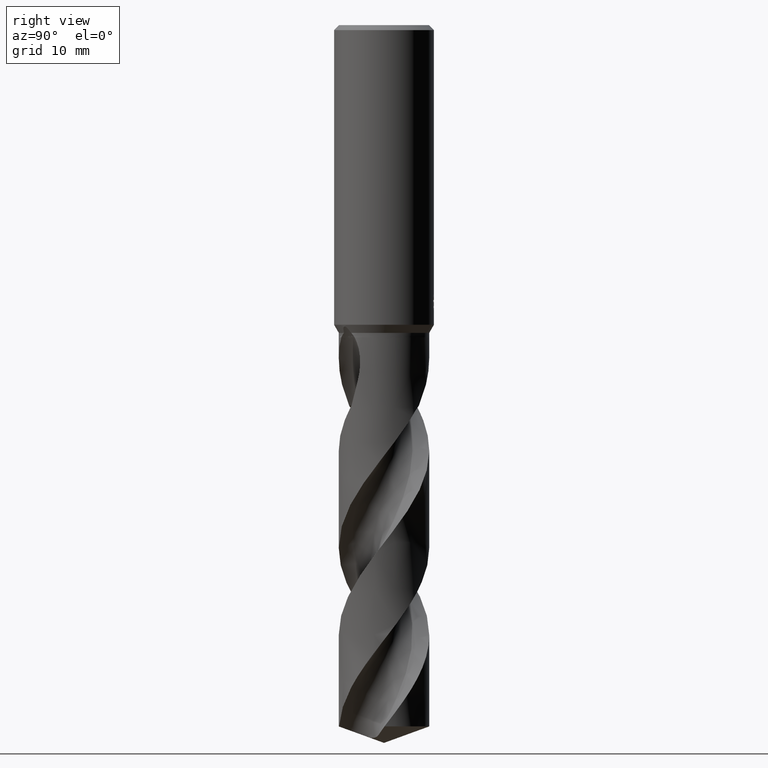
[diagram: clean part render]
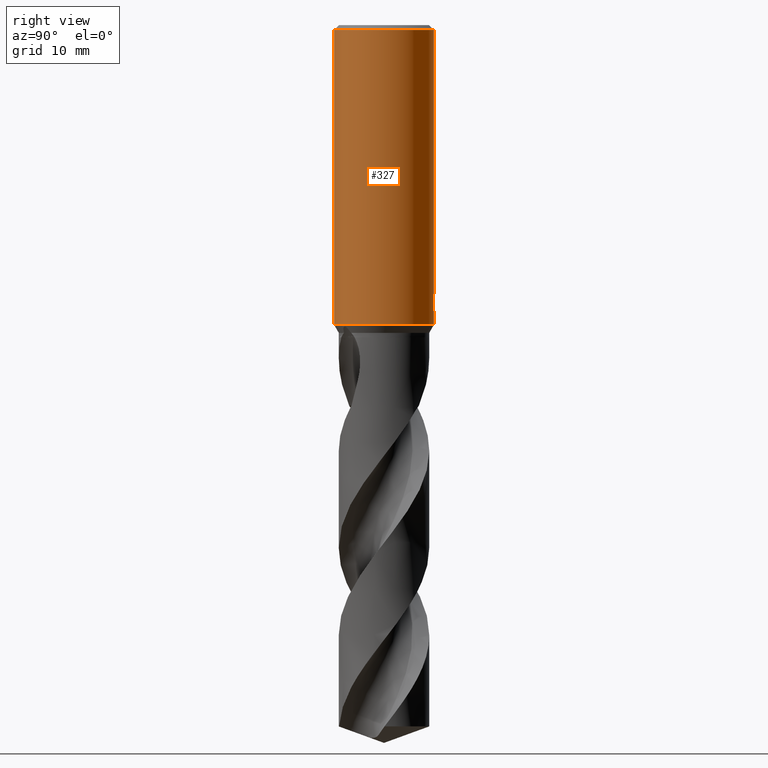
[diagram: same view with one face highlighted and labeled with its STEP entity id]
A machine part, right view. The second image highlights one B-rep face of the part: STEP entity #327.
In plain terms, the highlighted cylindrical surface (partial cylindrical patch) has radius 8 mm, axis along (-0, -0, 1).
Its self-contained STEP definition (entity closure, byte-faithful):
#299=EDGE_CURVE('',#537,#451,#830,.T.);
#327=ADVANCED_FACE('',(#864),#865,.T.);
#335=EDGE_CURVE('',#557,#739,#873,.T.);
#347=VERTEX_POINT('',#885);
#369=EDGE_CURVE('',#557,#451,#909,.T.);
#371=EDGE_CURVE('',#687,#437,#911,.T.);
#397=EDGE_CURVE('',#433,#537,#941,.T.);
#433=VERTEX_POINT('',#982);
#437=VERTEX_POINT('',#986);
#449=EDGE_CURVE('',#437,#679,#999,.T.);
#451=VERTEX_POINT('',#1001);
#465=EDGE_CURVE('',#509,#687,#1015,.T.);
#489=EDGE_CURVE('',#679,#739,#1039,.T.);
#509=VERTEX_POINT('',#1060);
#513=VERTEX_POINT('',#1064);
#537=VERTEX_POINT('',#1088);
#557=VERTEX_POINT('',#1108);
#571=EDGE_CURVE('',#513,#509,#1124,.T.);
#613=EDGE_CURVE('',#347,#433,#1169,.T.);
#631=EDGE_CURVE('',#697,#513,#1188,.T.);
#659=EDGE_CURVE('',#347,#697,#1220,.T.);
#679=VERTEX_POINT('',#1244);
#687=VERTEX_POINT('',#1253);
#697=VERTEX_POINT('',#1264);
#739=VERTEX_POINT('',#1311);
#830=LINE('',#1404,#1405);
#864=FACE_OUTER_BOUND('',#1767,.T.);
#865=CYLINDRICAL_SURFACE('',#1768,8.0);
#873=LINE('',#1779,#1780);
#885=CARTESIAN_POINT('',(-7.24729156774638E-017,8.0,-46.0310253601033));
#909=CIRCLE('',#1842,8.0);
#911=LINE('',#1845,#1846);
#941=CIRCLE('',#1923,8.0);
#982=CARTESIAN_POINT('',(0.0,8.0,-48.0));
#986=CARTESIAN_POINT('',(1.33721006514658,7.88745011024924,-43.5150484364821));
#999=B_SPLINE_CURVE_WITH_KNOTS('',3,(#2028,#2029,#2030,#2031,#2032,#2033,#2034,#2035,#2036,#2037),.UNSPECIFIED.,.F.,.F.,(4,2,2,2,4),(0.615348112106937,0.923022168160405,1.23069622421387,1.53827686765788,1.84585751110189),.UNSPECIFIED.);
#1001=CARTESIAN_POINT('',(9.79685083057902E-016,-8.0,-0.799999999999997));
#1015=B_SPLINE_CURVE_WITH_KNOTS('',3,(#2098,#2099,#2100,#2101,#2102,#2103,#2104,#2105,#2106,#2107),.UNSPECIFIED.,.F.,.F.,(4,2,2,2,4),(7.9997820093283,8.30736264228193,8.61494327523556,8.92261732067862,9.23029136612168),.UNSPECIFIED.);
#1039=B_SPLINE_CURVE_WITH_KNOTS('',3,(#2317,#2318,#2319,#2320,#2321,#2322,#2323,#2324,#2325,#2326,#2327,#2328,#2329,#2330,#2331,#2332,#2333,#2334,#2335,#2336,#2337,#2338,#2339,#2340,#2341,#2342,#2343),.UNSPECIFIED.,.F.,.F.,(4,2,3,2,2,2,2,2,2,2,2,2,4),(-0.5419285326464,-0.2709642663232,0.0,0.2709642663232,0.5419285326464,0.813116082096196,1.08430363154599,1.35512009221967,1.62593655289334,1.89686258809883,2.16778862330431,2.43871465850979,2.70964069371527),.UNSPECIFIED.);
#1060=CARTESIAN_POINT('',(0.873560781758956,7.95216269706378,-45.7587351791531));
#1064=CARTESIAN_POINT('',(0.873560781758957,7.95216269706378,-44.3198931596091));
#1088=CARTESIAN_POINT('',(9.79685083057902E-016,-8.0,-48.0));
#1108=CARTESIAN_POINT('',(0.0,8.0,-0.799999999999997));
#1124=LINE('',#3431,#3432);
#1169=LINE('',#4377,#4378);
#1188=ELLIPSE('',#4426,24.3839565869582,8.0);
#1220=B_SPLINE_CURVE_WITH_KNOTS('',3,(#4616,#4617,#4618,#4619,#4620,#4621,#4622,#4623,#4624,#4625,#4626,#4627,#4628,#4629,#4630,#4631),.UNSPECIFIED.,.F.,.F.,(4,2,2,2,2,2,2,4),(5.84590460773513,6.15359942935952,6.46135491269572,6.76911039603191,7.0768658793681,7.3846213627043,7.69220202210762,7.99978268151095),.UNSPECIFIED.);
#1244=CARTESIAN_POINT('',(0.799431726384364,7.95995659001041,-43.000000276873));
#1253=CARTESIAN_POINT('',(1.33721006514658,7.88745011024924,-45.2901657003257));
#1264=CARTESIAN_POINT('',(0.29010312703583,7.99473828062458,-45.9998328990228));
#1311=CARTESIAN_POINT('',(-9.11185746623598E-016,8.0,-44.0232688117743));
#1404=CARTESIAN_POINT('',(9.79685083057902E-016,-8.0,-24.4));
#1405=VECTOR('',#5278,1.0);
#1767=EDGE_LOOP('',(#5332,#5333,#5334,#5335,#5336,#5337,#5338,#5339,#5340,#5341,#5342,#5343));
#1768=AXIS2_PLACEMENT_3D('',#5344,#5345,#5346);
#1779=CARTESIAN_POINT('',(-9.79685083057902E-016,8.0,-24.4));
#1780=VECTOR('',#5348,1.0);
#1842=AXIS2_PLACEMENT_3D('',#5385,#5386,#5387);
#1845=CARTESIAN_POINT('',(1.33721006514658,7.88745011024924,-44.4026070684039));
#1846=VECTOR('',#5388,1.0);
#1923=AXIS2_PLACEMENT_3D('',#5452,#5453,#5454);
#2028=CARTESIAN_POINT('',(1.47599103529286,7.86266179253153,-43.7785325491198));
#2029=CARTESIAN_POINT('',(1.43438985944284,7.87047122759364,-43.6782513647829));
#2030=CARTESIAN_POINT('',(1.38262799115151,7.87984840929324,-43.5821733907361));
#2031=CARTESIAN_POINT('',(1.26311675841946,7.89988652891524,-43.4045654679751));
#2032=CARTESIAN_POINT('',(1.19535909291818,7.9105264552896,-43.323038735155));
#2033=CARTESIAN_POINT('',(1.05105571182799,7.93098927160683,-43.1787555986019));
#2034=CARTESIAN_POINT('',(0.96953892166584,7.94153484648562,-43.1110208119877));
#2035=CARTESIAN_POINT('',(0.791947255495983,7.96120600054034,-42.9915456660162));
#2036=CARTESIAN_POINT('',(0.695875588998913,7.97031164946692,-42.9397972554843));
#2037=CARTESIAN_POINT('',(0.595603047157031,7.97779775440674,-42.8982081378705));
#2098=CARTESIAN_POINT('',(0.595603069362038,7.97779775274897,-45.9070059828647));
#2099=CARTESIAN_POINT('',(0.695875607770284,7.97031164778485,-45.8654168666682));
#2100=CARTESIAN_POINT('',(0.791947270975792,7.9612059989663,-45.8136684579007));
#2101=CARTESIAN_POINT('',(0.969538931061313,7.94153484530432,-45.6941933160018));
#2102=CARTESIAN_POINT('',(1.05105571843074,7.93098927070892,-45.626458531696));
#2103=CARTESIAN_POINT('',(1.19535909455105,7.91052645501965,-45.4821754000808));
#2104=CARTESIAN_POINT('',(1.26311675770878,7.89988652901278,-45.400648670066));
#2105=CARTESIAN_POINT('',(1.38262798630879,7.87984841012683,-45.2230407534163));
#2106=CARTESIAN_POINT('',(1.43438985281126,7.87047122879432,-45.1269627826753));
#2107=CARTESIAN_POINT('',(1.47599102722323,7.86266179404637,-45.0266816017901));
#2317=CARTESIAN_POINT('',(0.664954599443552,7.97231681386778,-42.8134280485152));
#2318=CARTESIAN_POINT('',(0.728697309144575,7.96700016514617,-42.8771976298052));
#2319=CARTESIAN_POINT('',(0.783984970005959,7.96157817669746,-42.9579676288293));
#2320=CARTESIAN_POINT('',(0.857338729083105,7.95401344016708,-43.1350264032587));
#2321=CARTESIAN_POINT('',(0.875400981188567,7.9519603320272,-43.2313205904791));
#2322=CARTESIAN_POINT('',(0.875400981188567,7.9519603320272,-43.3216420125868));
#2323=CARTESIAN_POINT('',(0.875400981188567,7.9519603320272,-43.4119634346945));
#2324=CARTESIAN_POINT('',(0.857338729083105,7.95401344016708,-43.5082576219149));
#2325=CARTESIAN_POINT('',(0.783984970005959,7.96157817669746,-43.6853163963443));
#2326=CARTESIAN_POINT('',(0.728697309144575,7.96700016514617,-43.7660863953684));
#2327=CARTESIAN_POINT('',(0.601159363733413,7.97763784367611,-43.8936781061006));
#2328=CARTESIAN_POINT('',(0.520362377010846,7.9835511616299,-43.9490134763627));
#2329=CARTESIAN_POINT('',(0.343238271730281,7.99312539889087,-44.0224346019683));
#2330=CARTESIAN_POINT('',(0.246904936469423,7.99669990446128,-44.0405166027747));
#2331=CARTESIAN_POINT('',(0.0662715181116066,8.00023481827847,-44.0405166027747));
#2332=CARTESIAN_POINT('',(-0.0300046983202698,8.00043385807034,-44.0224788314126));
#2333=CARTESIAN_POINT('',(-0.207097636225057,7.99780924806332,-43.9491319808916));
#2334=CARTESIAN_POINT('',(-0.287916228308942,7.99507247117758,-43.8938243353674));
#2335=CARTESIAN_POINT('',(-0.415561608099308,7.98945501431132,-43.7662134499861));
#2336=CARTESIAN_POINT('',(-0.47089751346449,7.98621359896913,-43.6853869033816));
#2337=CARTESIAN_POINT('',(-0.544291654106699,7.9815473885346,-43.5082570304582));
#2338=CARTESIAN_POINT('',(-0.562348199187247,7.98021080566615,-43.4119506909886));
#2339=CARTESIAN_POINT('',(-0.562348199187247,7.98021080566615,-43.231333334185));
#2340=CARTESIAN_POINT('',(-0.544291654106699,7.9815473885346,-43.1350269947154));
#2341=CARTESIAN_POINT('',(-0.47089751346449,7.98621359896913,-42.9578971217919));
#2342=CARTESIAN_POINT('',(-0.415561608099308,7.98945501431132,-42.8770705751875));
#2343=CARTESIAN_POINT('',(-0.351726009227227,7.99226431084665,-42.8132522270084));
#3431=CARTESIAN_POINT('',(0.873560781758957,7.95216269706378,-45.0393141693811));
#3432=VECTOR('',#5587,1.0);
#4377=CARTESIAN_POINT('',(-9.79685083057902E-016,8.0,-24.4));
#4378=VECTOR('',#5627,1.0);
#4426=AXIS2_PLACEMENT_3D('',#5636,#5637,#5638);
#4616=CARTESIAN_POINT('',(-1.37965989409101,7.88013569531876,-45.3117516854175));
#4617=CARTESIAN_POINT('',(-1.3199289256702,7.89059343674534,-45.4005322669916));
#4618=CARTESIAN_POINT('',(-1.25220482221876,7.90172765643501,-45.4820341223787));
#4619=CARTESIAN_POINT('',(-1.107952172922,7.92324182089716,-45.6263077447315));
#4620=CARTESIAN_POINT('',(-1.02644372997692,7.93438131532357,-45.694054819207));
#4621=CARTESIAN_POINT('',(-0.848862462231446,7.95533947157086,-45.8135583581366));
#4622=CARTESIAN_POINT('',(-0.752792760365746,7.96513819479128,-45.8653229590247));
#4623=CARTESIAN_POINT('',(-0.552233007873722,7.9815513596031,-45.9485362190328));
#4624=CARTESIAN_POINT('',(-0.447578035759424,7.98816541907638,-45.9800508802037));
#4625=CARTESIAN_POINT('',(-0.236935963609582,7.99718539298489,-46.0214239066938));
#4626=CARTESIAN_POINT('',(-0.130946685762249,7.99958603183741,-46.0312723335086));
#4627=CARTESIAN_POINT('',(0.074164072792245,8.00031320966596,-46.0312723335086));
#4628=CARTESIAN_POINT('',(0.180109755406485,7.99866619075415,-46.0214348948015));
#4629=CARTESIAN_POINT('',(0.390692067401577,7.99114885755329,-45.9800916357112));
#4630=CARTESIAN_POINT('',(0.495330794510019,7.98528384147368,-45.9485955375336));
#4631=CARTESIAN_POINT('',(0.595603341302621,7.97779773244654,-45.9070064177945));
#5278=DIRECTION('',(-0.0,-0.0,1.0));
#5332=ORIENTED_EDGE('',*,*,#335,.F.);
#5333=ORIENTED_EDGE('',*,*,#369,.T.);
#5334=ORIENTED_EDGE('',*,*,#299,.F.);
#5335=ORIENTED_EDGE('',*,*,#397,.F.);
#5336=ORIENTED_EDGE('',*,*,#613,.F.);
#5337=ORIENTED_EDGE('',*,*,#659,.T.);
#5338=ORIENTED_EDGE('',*,*,#631,.T.);
#5339=ORIENTED_EDGE('',*,*,#571,.T.);
#5340=ORIENTED_EDGE('',*,*,#465,.T.);
#5341=ORIENTED_EDGE('',*,*,#371,.T.);
#5342=ORIENTED_EDGE('',*,*,#449,.T.);
#5343=ORIENTED_EDGE('',*,*,#489,.T.);
#5344=CARTESIAN_POINT('',(0.0,0.0,-24.4));
#5345=DIRECTION('',(-0.0,-0.0,1.0));
#5346=DIRECTION('',(0.0,1.0,0.0));
#5348=DIRECTION('',(0.0,0.0,-1.0));
#5385=CARTESIAN_POINT('',(0.0,0.0,-0.799999999999997));
#5386=DIRECTION('',(0.0,0.0,-1.0));
#5387=DIRECTION('',(0.0,1.0,0.0));
#5388=DIRECTION('',(-0.0,-0.0,1.0));
#5452=CARTESIAN_POINT('',(0.0,0.0,-48.0));
#5453=DIRECTION('',(0.0,0.0,-1.0));
#5454=DIRECTION('',(0.0,1.0,0.0));
#5587=DIRECTION('',(0.0,0.0,-1.0));
#5627=DIRECTION('',(0.0,0.0,-1.0));
#5636=CARTESIAN_POINT('',(0.0,0.0,-46.8351219173269));
#5637=DIRECTION('',(0.944648353914092,0.0,-0.328084573619969));
#5638=DIRECTION('',(0.328084573619968,-0.0,0.944648353914092));